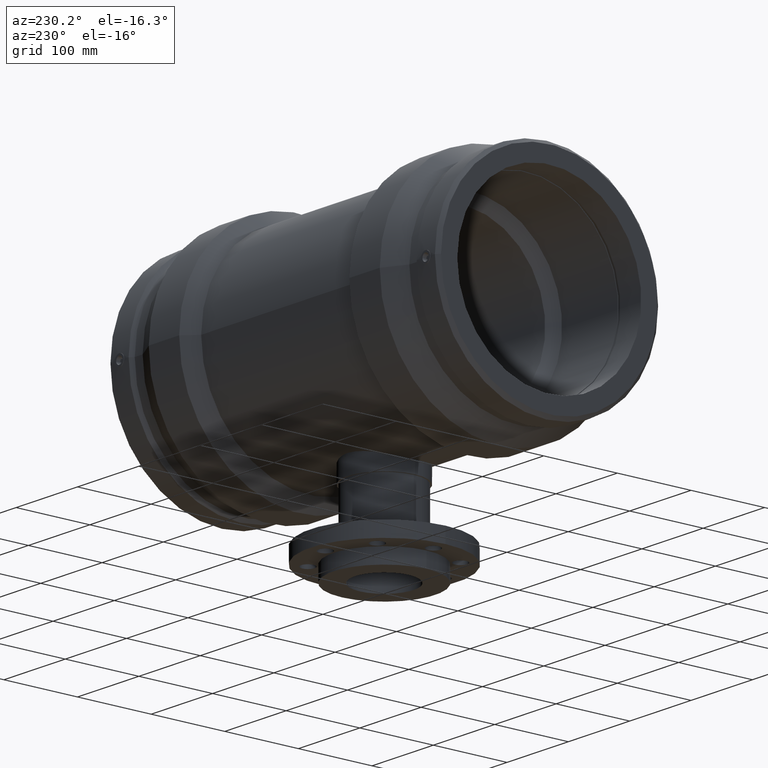
[diagram: clean part render]
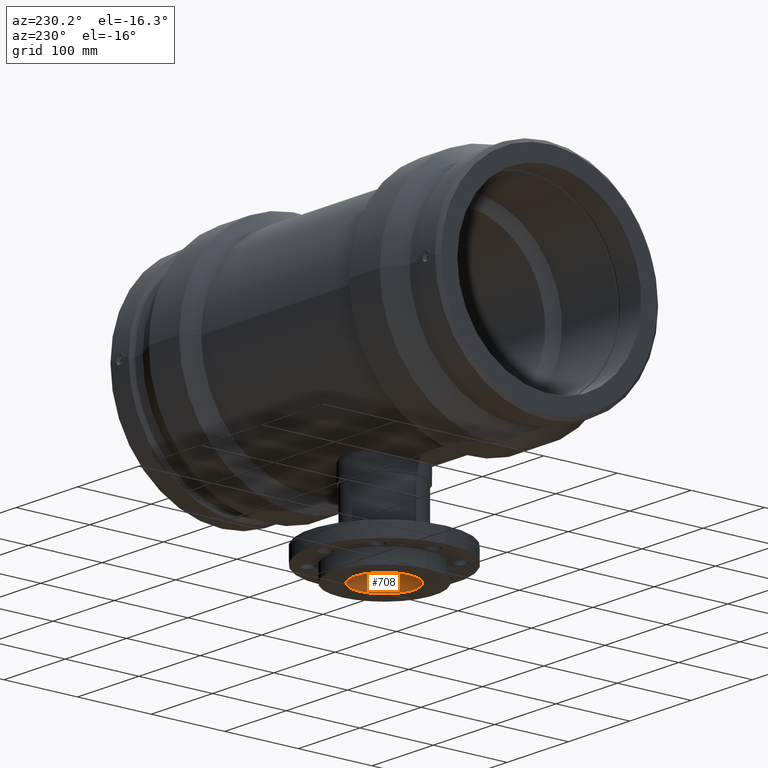
[diagram: same view with one face highlighted and labeled with its STEP entity id]
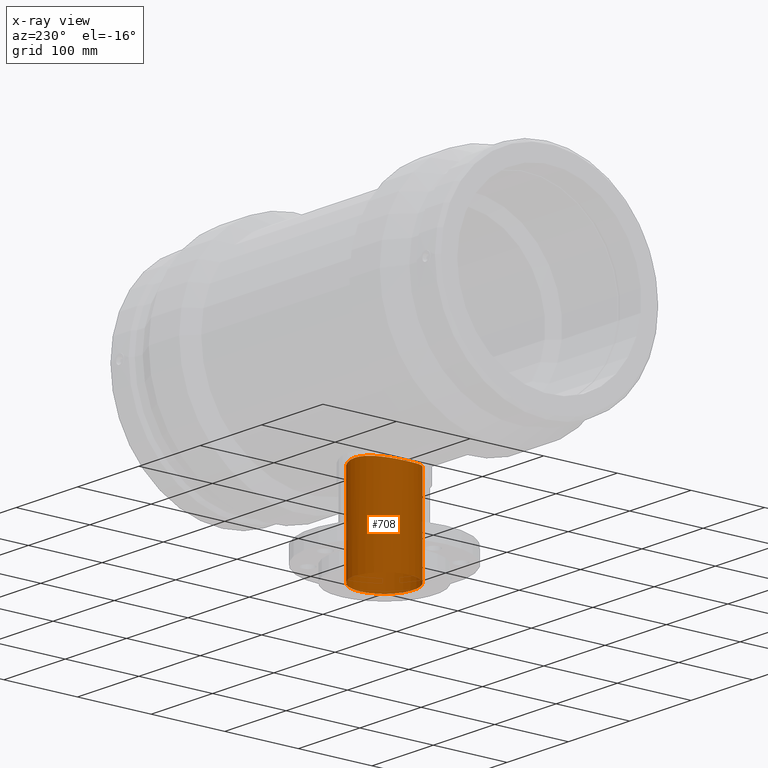
[diagram: x-ray of the same camera — body ghosted, the highlighted face saturated]
A machine part, auxiliary view. The second image highlights one B-rep face of the part: STEP entity #708.
The next image is the same camera in x-ray: the body ghosted, the highlighted face saturated — about 1% of this face is hidden behind the body in this view.
In plain terms, the highlighted cylindrical surface (bore or boss wall) has radius 40 mm, axis along (-0, 0, -1).
Its self-contained STEP definition (entity closure, byte-faithful):
#52=FACE_BOUND('',#293,.T.);
#137=CIRCLE('',#786,40.);
#193=CYLINDRICAL_SURFACE('',#785,40.);
#224=FACE_OUTER_BOUND('',#292,.T.);
#292=EDGE_LOOP('',(#578));
#293=EDGE_LOOP('',(#579));
#414=B_SPLINE_CURVE_WITH_KNOTS('',3,(#1267,#1268,#1269,#1270,#1271,#1272,
#1273,#1274,#1275,#1276,#1277,#1278,#1279,#1280,#1281,#1282,#1283,#1284,
#1285,#1286,#1287,#1288,#1289,#1290,#1291,#1292,#1293,#1294,#1295,#1296,
#1297,#1298,#1299,#1300,#1301,#1302,#1303,#1304,#1305,#1306,#1307,#1308,
#1309,#1310,#1311,#1312,#1313,#1314,#1315,#1316,#1317,#1318,#1319,#1320,
#1321,#1322,#1323,#1324,#1325,#1326,#1327,#1328,#1329,#1330,#1331,#1332,
#1333,#1334,#1335,#1336,#1337,#1338,#1339,#1340,#1341,#1342,#1343,#1344,
#1345,#1346,#1347,#1348,#1349,#1350,#1351,#1352,#1353,#1354,#1355,#1356,
#1357,#1358,#1359,#1360,#1361,#1362,#1363),.UNSPECIFIED.,.T.,.F.,(4,3,3,
3,3,3,3,3,3,3,3,3,3,3,3,3,3,3,3,3,3,3,3,3,3,3,3,3,3,3,3,3,4),(0.,0.757602126854877,
1.51520425370975,2.27280638056463,3.03040850741951,3.78785899492351,4.54530948242751,
5.30275996993151,6.06021045743551,6.81766094493952,7.57511143244352,8.33256191994752,
9.09001240745152,9.8476145343064,10.6052166611613,11.3628187880162,12.120420914871,
12.8780230417259,13.6356251685808,14.3932272954357,15.1508294222905,15.9082799097945,
16.6657303972985,17.4231808848025,18.1806313723065,18.9380818598105,19.6955323473145,
20.4529828348185,21.2104333223226,21.9680354491774,22.7256375760323,23.4832397028872,
24.2408418297421),.UNSPECIFIED.);
#419=VERTEX_POINT('',#1266);
#437=VERTEX_POINT('',#1443);
#488=EDGE_CURVE('',#419,#419,#414,.T.);
#507=EDGE_CURVE('',#437,#437,#137,.T.);
#578=ORIENTED_EDGE('',*,*,#507,.T.);
#579=ORIENTED_EDGE('',*,*,#488,.F.);
#708=ADVANCED_FACE('',(#224,#52),#193,.F.);
#785=AXIS2_PLACEMENT_3D('',#1442,#935,#936);
#786=AXIS2_PLACEMENT_3D('',#1444,#937,#938);
#935=DIRECTION('center_axis',(-1.22464679914735E-16,0.,-1.));
#936=DIRECTION('ref_axis',(-1.,0.,0.));
#937=DIRECTION('center_axis',(-1.22464679914735E-16,0.,-1.));
#938=DIRECTION('ref_axis',(1.,0.,-1.22464679914735E-16));
#1266=CARTESIAN_POINT('',(-1.72084568816899E-14,40.,-141.141383017172));
#1267=CARTESIAN_POINT('Ctrl Pts',(-1.77635683940025E-14,40.,-141.141383017172));
#1268=CARTESIAN_POINT('Ctrl Pts',(2.52534042284957,40.,-141.141383017172));
#1269=CARTESIAN_POINT('Ctrl Pts',(5.13256632241312,39.7569958746194,-141.211014815707));
#1270=CARTESIAN_POINT('Ctrl Pts',(7.72149119422619,39.2476569203499,-141.352436930753));
#1271=CARTESIAN_POINT('Ctrl Pts',(10.3104160660393,38.7383179660803,-141.4938590458));
#1272=CARTESIAN_POINT('Ctrl Pts',(12.8811059101722,37.9629105264893,-141.706822596652));
#1273=CARTESIAN_POINT('Ctrl Pts',(15.3428330455939,36.9404584992539,-141.972858412673));
#1274=CARTESIAN_POINT('Ctrl Pts',(17.8045601810155,35.9180064720185,-142.238894228694));
#1275=CARTESIAN_POINT('Ctrl Pts',(20.1614907891213,34.6468858745333,-142.557879326595));
#1276=CARTESIAN_POINT('Ctrl Pts',(22.3392553626059,33.1806821787057,-142.898328647174));
#1277=CARTESIAN_POINT('Ctrl Pts',(24.5170199360905,31.7144784828782,-143.238777967753));
#1278=CARTESIAN_POINT('Ctrl Pts',(26.5155759223964,30.0529665725274,-143.599993945992));
#1279=CARTESIAN_POINT('Ctrl Pts',(28.2842712474619,28.2842712474619,-143.947525161081));
#1280=CARTESIAN_POINT('Ctrl Pts',(30.0526125558193,26.5159299391045,-144.294986815373));
#1281=CARTESIAN_POINT('Ctrl Pts',(31.7140836632605,24.5175397647985,-144.653502261521));
#1282=CARTESIAN_POINT('Ctrl Pts',(33.1803657509682,22.3397253481768,-144.989057074553));
#1283=CARTESIAN_POINT('Ctrl Pts',(34.646647838676,20.161910931555,-145.324611887585));
#1284=CARTESIAN_POINT('Ctrl Pts',(35.9179498391204,17.8047149771664,-145.636570082046));
#1285=CARTESIAN_POINT('Ctrl Pts',(36.940502803041,15.3427263763166,-145.895478844759));
#1286=CARTESIAN_POINT('Ctrl Pts',(37.9630557669616,12.8807377754668,-146.154387607472));
#1287=CARTESIAN_POINT('Ctrl Pts',(38.7384842123212,10.3097985272755,-146.3602384152));
#1288=CARTESIAN_POINT('Ctrl Pts',(39.2477854376147,7.72083792362947,-146.496684814903));
#1289=CARTESIAN_POINT('Ctrl Pts',(39.7570866629082,5.13187731998341,-146.633131214607));
#1290=CARTESIAN_POINT('Ctrl Pts',(40.,2.52483495834668,-146.7));
#1291=CARTESIAN_POINT('Ctrl Pts',(40.,4.44089209850063E-15,-146.7));
#1292=CARTESIAN_POINT('Ctrl Pts',(40.,-2.52483495834667,-146.7));
#1293=CARTESIAN_POINT('Ctrl Pts',(39.7570866629082,-5.1318773199834,-146.633131214607));
#1294=CARTESIAN_POINT('Ctrl Pts',(39.2477854376147,-7.72083792362946,-146.496684814903));
#1295=CARTESIAN_POINT('Ctrl Pts',(38.7384842123212,-10.3097985272755,-146.3602384152));
#1296=CARTESIAN_POINT('Ctrl Pts',(37.9630557669616,-12.8807377754669,-146.154387607472));
#1297=CARTESIAN_POINT('Ctrl Pts',(36.940502803041,-15.3427263763166,-145.895478844759));
#1298=CARTESIAN_POINT('Ctrl Pts',(35.9179498391204,-17.8047149771664,-145.636570082046));
#1299=CARTESIAN_POINT('Ctrl Pts',(34.646647838676,-20.161910931555,-145.324611887585));
#1300=CARTESIAN_POINT('Ctrl Pts',(33.1803657509683,-22.3397253481767,-144.989057074553));
#1301=CARTESIAN_POINT('Ctrl Pts',(31.7140836632605,-24.5175397647985,-144.653502261521));
#1302=CARTESIAN_POINT('Ctrl Pts',(30.0526125558193,-26.5159299391045,-144.294986815373));
#1303=CARTESIAN_POINT('Ctrl Pts',(28.2842712474619,-28.2842712474619,-143.947525161081));
#1304=CARTESIAN_POINT('Ctrl Pts',(26.5155759223964,-30.0529665725274,-143.599993945992));
#1305=CARTESIAN_POINT('Ctrl Pts',(24.5170199360905,-31.7144784828782,-143.238777967753));
#1306=CARTESIAN_POINT('Ctrl Pts',(22.3392553626059,-33.1806821787057,-142.898328647174));
#1307=CARTESIAN_POINT('Ctrl Pts',(20.1614907891213,-34.6468858745333,-142.557879326595));
#1308=CARTESIAN_POINT('Ctrl Pts',(17.8045601810155,-35.9180064720185,-142.238894228694));
#1309=CARTESIAN_POINT('Ctrl Pts',(15.3428330455939,-36.9404584992539,-141.972858412673));
#1310=CARTESIAN_POINT('Ctrl Pts',(12.8811059101723,-37.9629105264893,-141.706822596652));
#1311=CARTESIAN_POINT('Ctrl Pts',(10.3104160660393,-38.7383179660803,-141.4938590458));
#1312=CARTESIAN_POINT('Ctrl Pts',(7.72149119422619,-39.2476569203499,-141.352436930753));
#1313=CARTESIAN_POINT('Ctrl Pts',(5.13256632241311,-39.7569958746194,-141.211014815707));
#1314=CARTESIAN_POINT('Ctrl Pts',(2.52534042284957,-40.,-141.141383017172));
#1315=CARTESIAN_POINT('Ctrl Pts',(-1.67549886431173E-14,-40.,-141.141383017172));
#1316=CARTESIAN_POINT('Ctrl Pts',(-2.5253404228496,-40.,-141.141383017172));
#1317=CARTESIAN_POINT('Ctrl Pts',(-5.13256632241315,-39.7569958746194,-141.211014815707));
#1318=CARTESIAN_POINT('Ctrl Pts',(-7.72149119422623,-39.2476569203499,-141.352436930753));
#1319=CARTESIAN_POINT('Ctrl Pts',(-10.3104160660393,-38.7383179660803,-141.4938590458));
#1320=CARTESIAN_POINT('Ctrl Pts',(-12.8811059101723,-37.9629105264893,-141.706822596652));
#1321=CARTESIAN_POINT('Ctrl Pts',(-15.3428330455939,-36.9404584992539,-141.972858412673));
#1322=CARTESIAN_POINT('Ctrl Pts',(-17.8045601810155,-35.9180064720185,-142.238894228694));
#1323=CARTESIAN_POINT('Ctrl Pts',(-20.1614907891214,-34.6468858745333,-142.557879326595));
#1324=CARTESIAN_POINT('Ctrl Pts',(-22.339255362606,-33.1806821787057,-142.898328647174));
#1325=CARTESIAN_POINT('Ctrl Pts',(-24.5170199360906,-31.7144784828782,-143.238777967753));
#1326=CARTESIAN_POINT('Ctrl Pts',(-26.5155759223964,-30.0529665725274,-143.599993945992));
#1327=CARTESIAN_POINT('Ctrl Pts',(-28.2842712474619,-28.2842712474619,-143.947525161081));
#1328=CARTESIAN_POINT('Ctrl Pts',(-30.0526125558193,-26.5159299391045,-144.294986815373));
#1329=CARTESIAN_POINT('Ctrl Pts',(-31.7140836632606,-24.5175397647985,-144.653502261521));
#1330=CARTESIAN_POINT('Ctrl Pts',(-33.1803657509683,-22.3397253481768,-144.989057074553));
#1331=CARTESIAN_POINT('Ctrl Pts',(-34.646647838676,-20.161910931555,-145.324611887585));
#1332=CARTESIAN_POINT('Ctrl Pts',(-35.9179498391204,-17.8047149771664,-145.636570082046));
#1333=CARTESIAN_POINT('Ctrl Pts',(-36.940502803041,-15.3427263763166,-145.895478844759));
#1334=CARTESIAN_POINT('Ctrl Pts',(-37.9630557669616,-12.8807377754668,-146.154387607472));
#1335=CARTESIAN_POINT('Ctrl Pts',(-38.7384842123213,-10.3097985272755,-146.3602384152));
#1336=CARTESIAN_POINT('Ctrl Pts',(-39.2477854376148,-7.72083792362947,-146.496684814903));
#1337=CARTESIAN_POINT('Ctrl Pts',(-39.7570866629083,-5.13187731998342,-146.633131214607));
#1338=CARTESIAN_POINT('Ctrl Pts',(-40.,-2.52483495834668,-146.7));
#1339=CARTESIAN_POINT('Ctrl Pts',(-40.,2.692290834716E-14,-146.7));
#1340=CARTESIAN_POINT('Ctrl Pts',(-40.,2.52483495834666,-146.7));
#1341=CARTESIAN_POINT('Ctrl Pts',(-39.7570866629083,5.13187731998338,-146.633131214607));
#1342=CARTESIAN_POINT('Ctrl Pts',(-39.2477854376148,7.72083792362942,-146.496684814903));
#1343=CARTESIAN_POINT('Ctrl Pts',(-38.7384842123213,10.3097985272755,-146.3602384152));
#1344=CARTESIAN_POINT('Ctrl Pts',(-37.9630557669616,12.8807377754668,-146.154387607472));
#1345=CARTESIAN_POINT('Ctrl Pts',(-36.940502803041,15.3427263763166,-145.895478844759));
#1346=CARTESIAN_POINT('Ctrl Pts',(-35.9179498391204,17.8047149771664,-145.636570082046));
#1347=CARTESIAN_POINT('Ctrl Pts',(-34.646647838676,20.1619109315549,-145.324611887585));
#1348=CARTESIAN_POINT('Ctrl Pts',(-33.1803657509683,22.3397253481767,-144.989057074553));
#1349=CARTESIAN_POINT('Ctrl Pts',(-31.7140836632606,24.5175397647985,-144.653502261521));
#1350=CARTESIAN_POINT('Ctrl Pts',(-30.0526125558193,26.5159299391045,-144.294986815373));
#1351=CARTESIAN_POINT('Ctrl Pts',(-28.2842712474619,28.2842712474619,-143.947525161081));
#1352=CARTESIAN_POINT('Ctrl Pts',(-26.5155759223964,30.0529665725274,-143.599993945992));
#1353=CARTESIAN_POINT('Ctrl Pts',(-24.5170199360906,31.7144784828782,-143.238777967753));
#1354=CARTESIAN_POINT('Ctrl Pts',(-22.339255362606,33.1806821787057,-142.898328647174));
#1355=CARTESIAN_POINT('Ctrl Pts',(-20.1614907891214,34.6468858745333,-142.557879326595));
#1356=CARTESIAN_POINT('Ctrl Pts',(-17.8045601810155,35.9180064720185,-142.238894228694));
#1357=CARTESIAN_POINT('Ctrl Pts',(-15.3428330455939,36.9404584992539,-141.972858412673));
#1358=CARTESIAN_POINT('Ctrl Pts',(-12.8811059101723,37.9629105264893,-141.706822596652));
#1359=CARTESIAN_POINT('Ctrl Pts',(-10.3104160660393,38.7383179660803,-141.4938590458));
#1360=CARTESIAN_POINT('Ctrl Pts',(-7.72149119422623,39.2476569203499,-141.352436930753));
#1361=CARTESIAN_POINT('Ctrl Pts',(-5.13256632241315,39.7569958746194,-141.211014815707));
#1362=CARTESIAN_POINT('Ctrl Pts',(-2.52534042284962,40.,-141.141383017172));
#1363=CARTESIAN_POINT('Ctrl Pts',(-1.7284834293921E-14,40.,-141.141383017172));
#1442=CARTESIAN_POINT('Origin',(-1.65327317884893E-14,0.,-135.));
#1443=CARTESIAN_POINT('',(-40.,0.,-270.));
#1444=CARTESIAN_POINT('Origin',(-3.30654635769785E-14,0.,-270.));